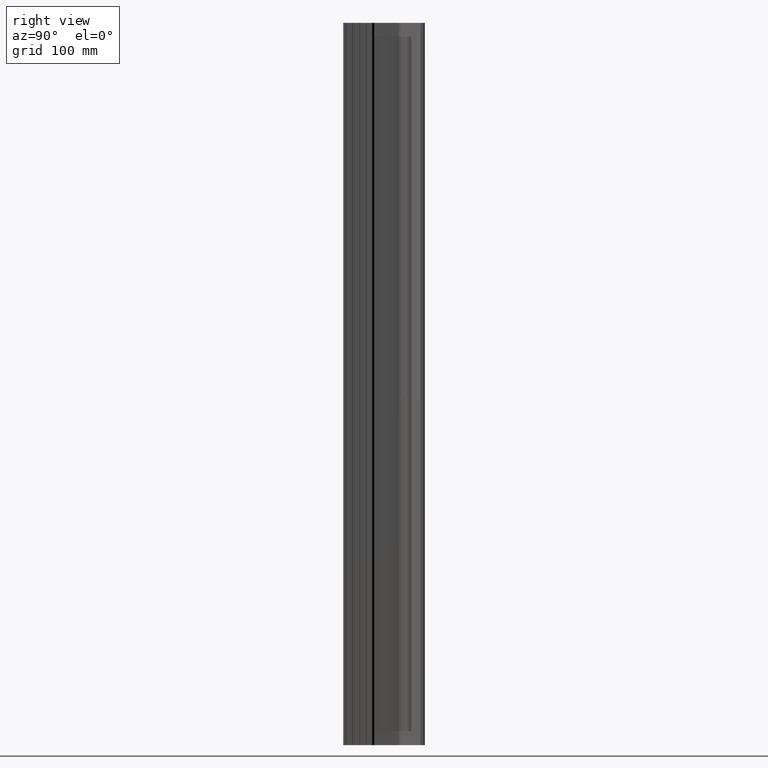
[diagram: clean part render]
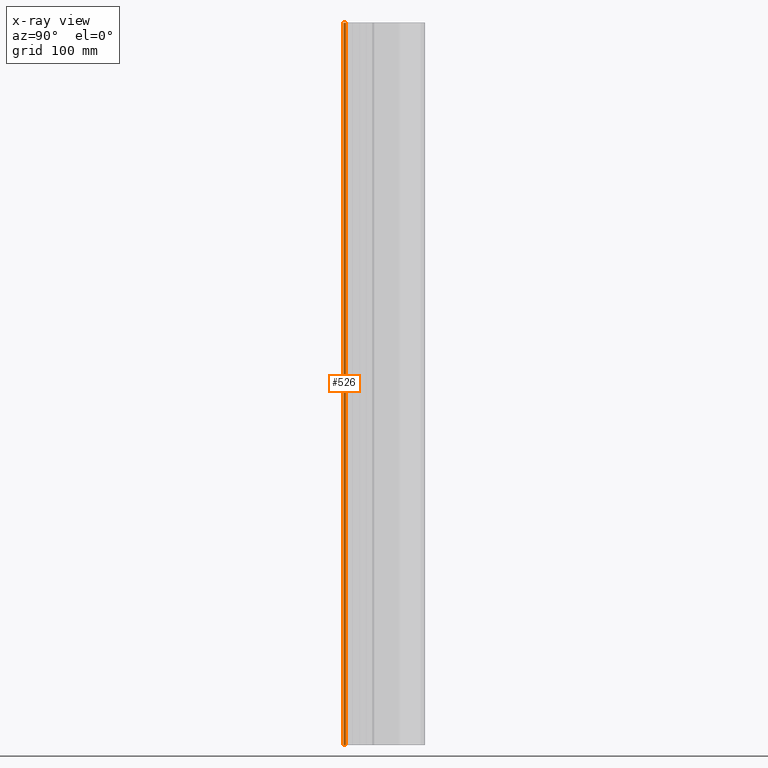
[diagram: x-ray — body ghosted, one internal face saturated and labeled with its STEP entity id]
A machine part, right view, then the same camera in x-ray: the body is ghosted and one INTERNAL B-rep face — a face not visible from any outside direction — is saturated and labeled: STEP entity #526.
In plain terms, the highlighted planar face has unit normal (-1, 0, 0).
Its self-contained STEP definition (entity closure, byte-faithful):
#65 = DIRECTION ( 'NONE',  ( 0.0000000000000000000, 1.000000000000000000, 0.0000000000000000000 ) ) ;
#137 = EDGE_CURVE ( 'NONE', #190, #1970, #1430, .T. ) ;
#190 = VERTEX_POINT ( 'NONE', #824 ) ;
#452 = DIRECTION ( 'NONE',  ( 0.0000000000000000000, 0.0000000000000000000, 1.000000000000000000 ) ) ;
#526 = ADVANCED_FACE ( 'NONE', ( #1203 ), #1241, .F. ) ;
#578 = CARTESIAN_POINT ( 'NONE',  ( 6.000000000000014200, -113.0000000000000100, 500.0000000000000000 ) ) ;
#729 = VERTEX_POINT ( 'NONE', #1950 ) ;
#775 = VECTOR ( 'NONE', #1812, 1000.000000000000000 ) ;
#816 = EDGE_CURVE ( 'NONE', #729, #1970, #1749, .T. ) ;
#824 = CARTESIAN_POINT ( 'NONE',  ( 6.000000000000014200, -109.2886751345948000, 500.0000000000000000 ) ) ;
#834 = LINE ( 'NONE', #578, #775 ) ;
#843 = ORIENTED_EDGE ( 'NONE', *, *, #816, .T. ) ;
#949 = CARTESIAN_POINT ( 'NONE',  ( 6.000000000000014200, -109.2886751345948000, 500.0000000000000000 ) ) ;
#1014 = CARTESIAN_POINT ( 'NONE',  ( 6.000000000000014200, -109.2886751345948000, -500.0000000000000000 ) ) ;
#1068 = CARTESIAN_POINT ( 'NONE',  ( 6.000000000000014200, -113.0000000000000100, -500.0000000000000000 ) ) ;
#1147 = EDGE_CURVE ( 'NONE', #2093, #729, #834, .T. ) ;
#1162 = DIRECTION ( 'NONE',  ( -0.0000000000000000000, -0.0000000000000000000, -1.000000000000000000 ) ) ;
#1203 = FACE_OUTER_BOUND ( 'NONE', #1586, .T. ) ;
#1241 = PLANE ( 'NONE',  #1323 ) ;
#1323 = AXIS2_PLACEMENT_3D ( 'NONE', #1451, #1672, #452 ) ;
#1356 = ORIENTED_EDGE ( 'NONE', *, *, #1147, .T. ) ;
#1360 = ORIENTED_EDGE ( 'NONE', *, *, #137, .F. ) ;
#1398 = VECTOR ( 'NONE', #2452, 1000.000000000000000 ) ;
#1430 = LINE ( 'NONE', #949, #1928 ) ;
#1451 = CARTESIAN_POINT ( 'NONE',  ( 6.000000000000014200, -113.0000000000000100, 500.0000000000000000 ) ) ;
#1562 = EDGE_CURVE ( 'NONE', #2093, #190, #2539, .T. ) ;
#1586 = EDGE_LOOP ( 'NONE', ( #843, #1360, #1785, #1356 ) ) ;
#1665 = CARTESIAN_POINT ( 'NONE',  ( 6.000000000000014200, -113.0000000000000100, 500.0000000000000000 ) ) ;
#1672 = DIRECTION ( 'NONE',  ( -1.000000000000000000, 0.0000000000000000000, 0.0000000000000000000 ) ) ;
#1675 = VECTOR ( 'NONE', #65, 1000.000000000000000 ) ;
#1749 = LINE ( 'NONE', #1068, #1675 ) ;
#1785 = ORIENTED_EDGE ( 'NONE', *, *, #1562, .F. ) ;
#1812 = DIRECTION ( 'NONE',  ( -0.0000000000000000000, -0.0000000000000000000, -1.000000000000000000 ) ) ;
#1928 = VECTOR ( 'NONE', #1162, 1000.000000000000000 ) ;
#1950 = CARTESIAN_POINT ( 'NONE',  ( 6.000000000000014200, -113.0000000000000100, -500.0000000000000000 ) ) ;
#1970 = VERTEX_POINT ( 'NONE', #1014 ) ;
#2074 = CARTESIAN_POINT ( 'NONE',  ( 6.000000000000014200, -113.0000000000000100, 500.0000000000000000 ) ) ;
#2093 = VERTEX_POINT ( 'NONE', #2074 ) ;
#2452 = DIRECTION ( 'NONE',  ( 0.0000000000000000000, 1.000000000000000000, 0.0000000000000000000 ) ) ;
#2539 = LINE ( 'NONE', #1665, #1398 ) ;